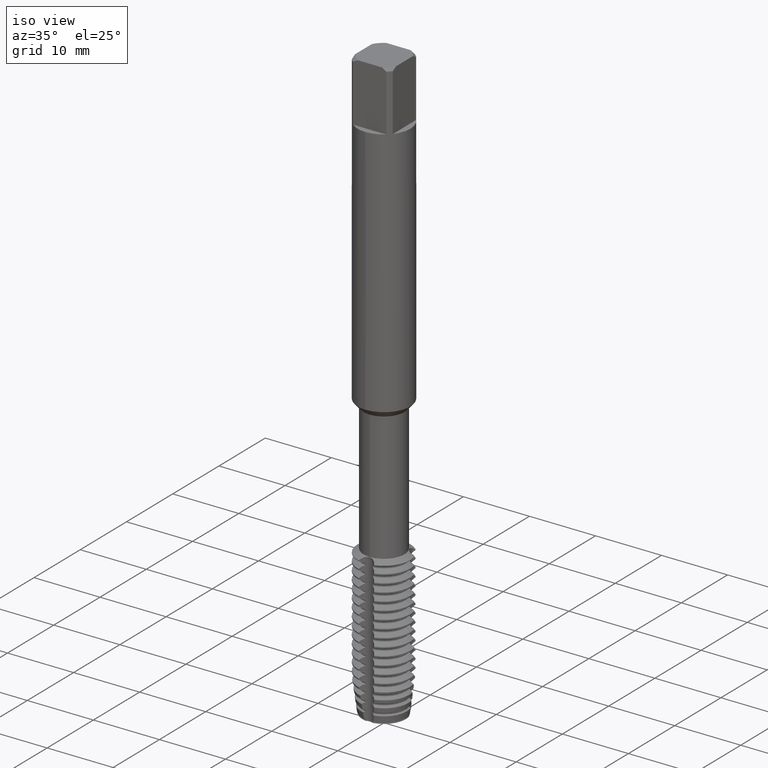
[diagram: clean part render]
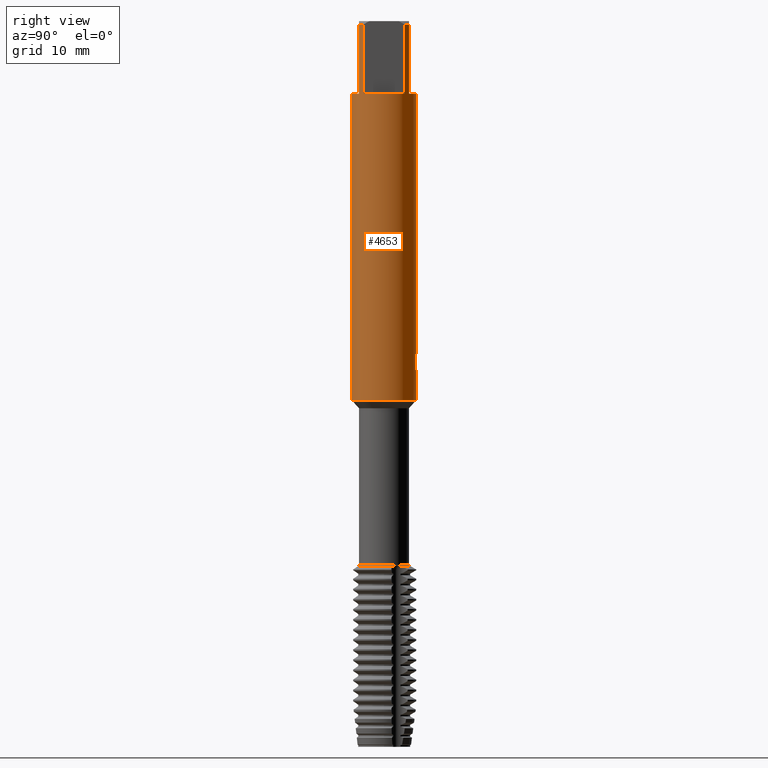
[diagram: tour spotlight — one face highlighted and labeled with its STEP entity id]
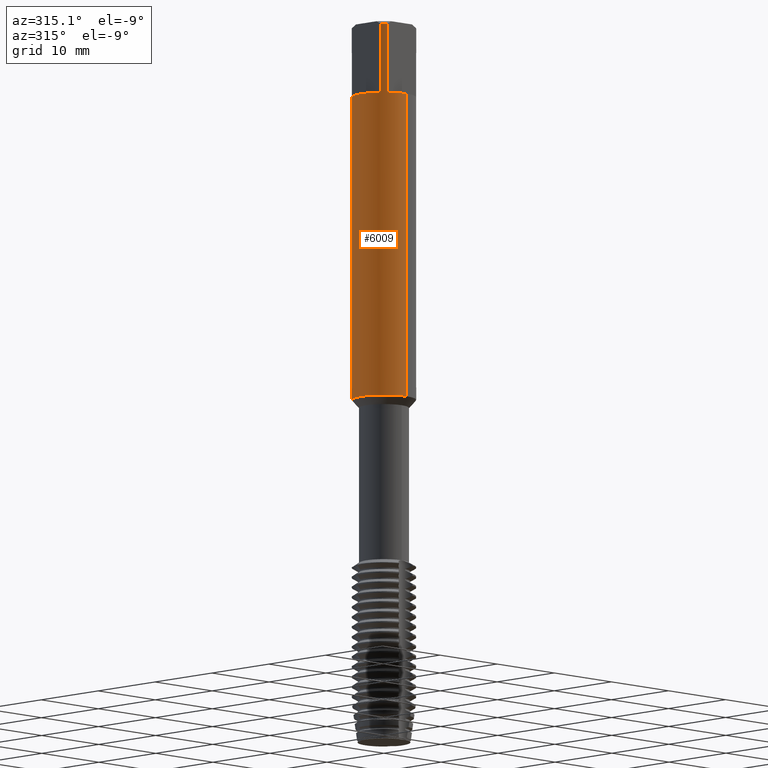
[diagram: tour spotlight — one face highlighted and labeled with its STEP entity id]
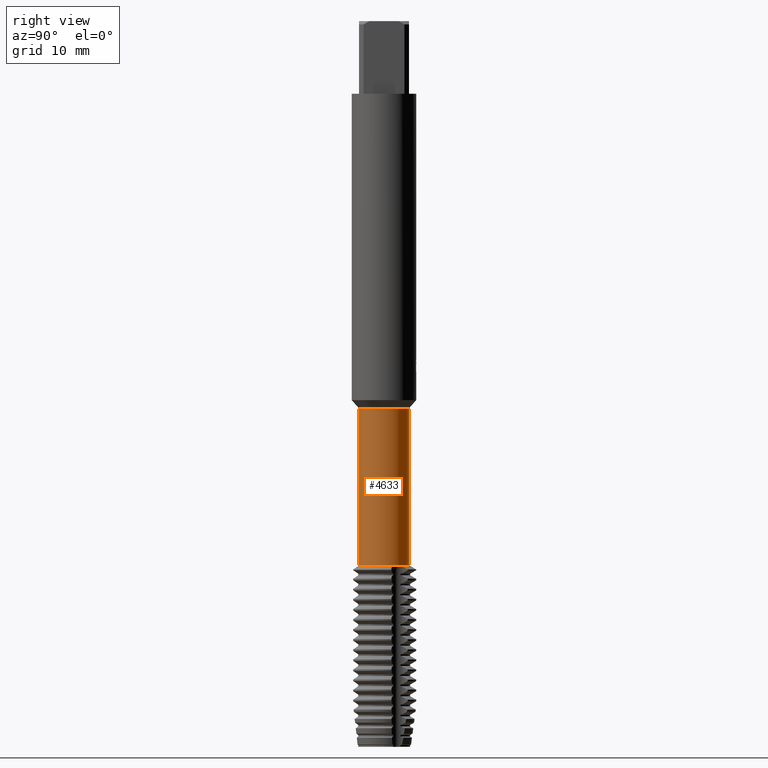
[diagram: tour spotlight — one face highlighted and labeled with its STEP entity id]
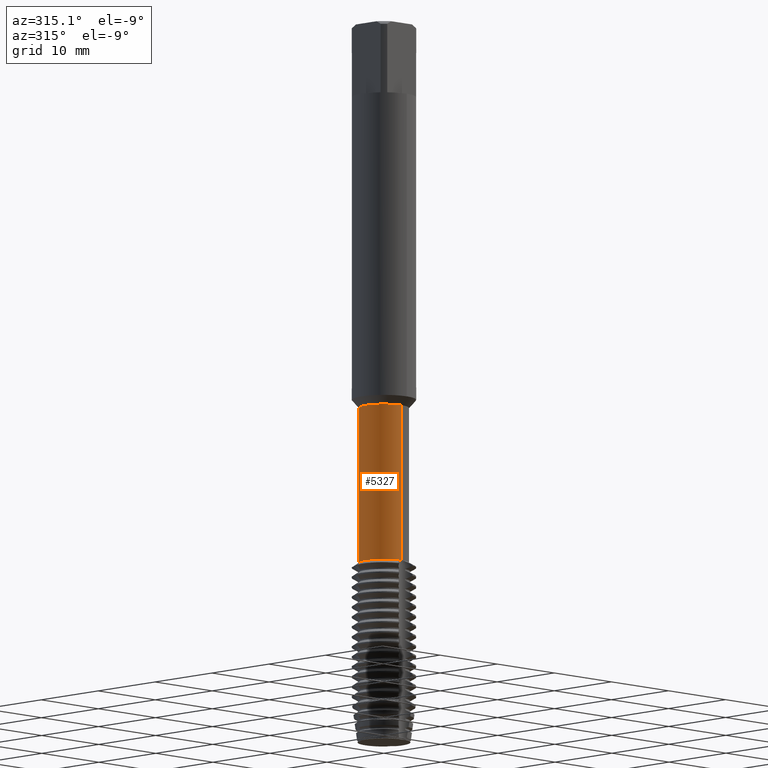
[diagram: tour spotlight — one face highlighted and labeled with its STEP entity id]
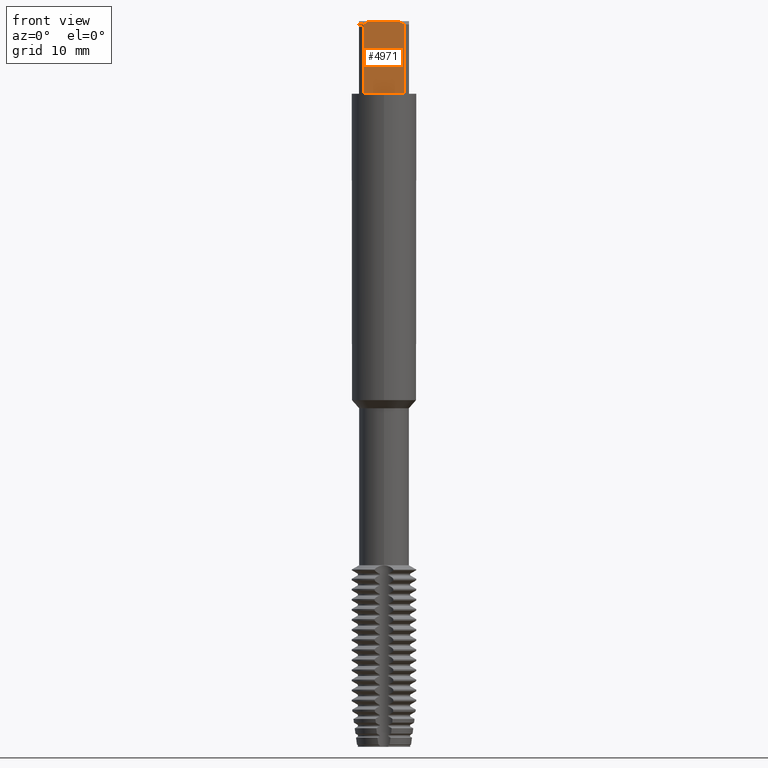
[diagram: tour spotlight — one face highlighted and labeled with its STEP entity id]
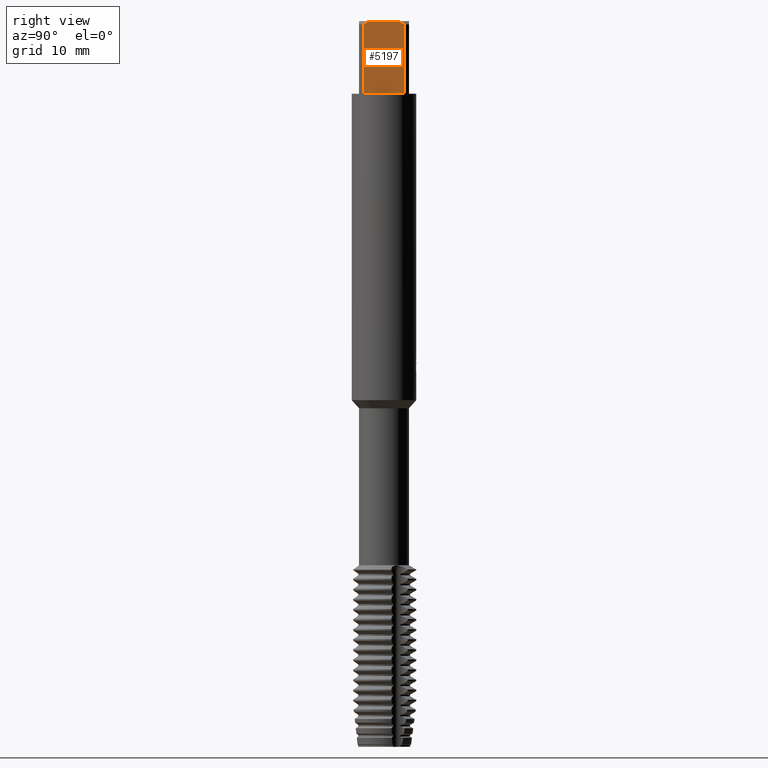
[diagram: tour spotlight — one face highlighted and labeled with its STEP entity id]
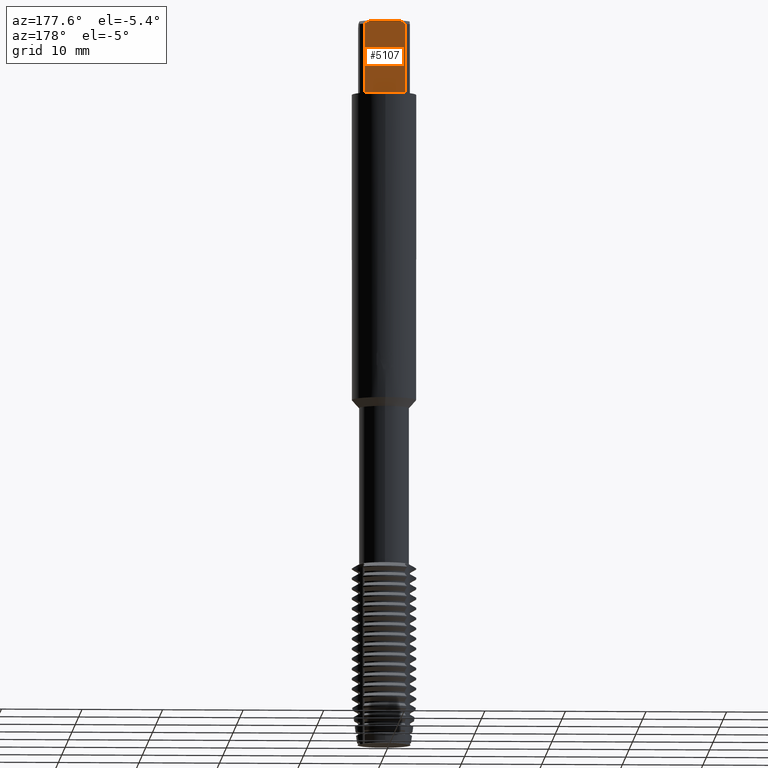
[diagram: tour spotlight — one face highlighted and labeled with its STEP entity id]
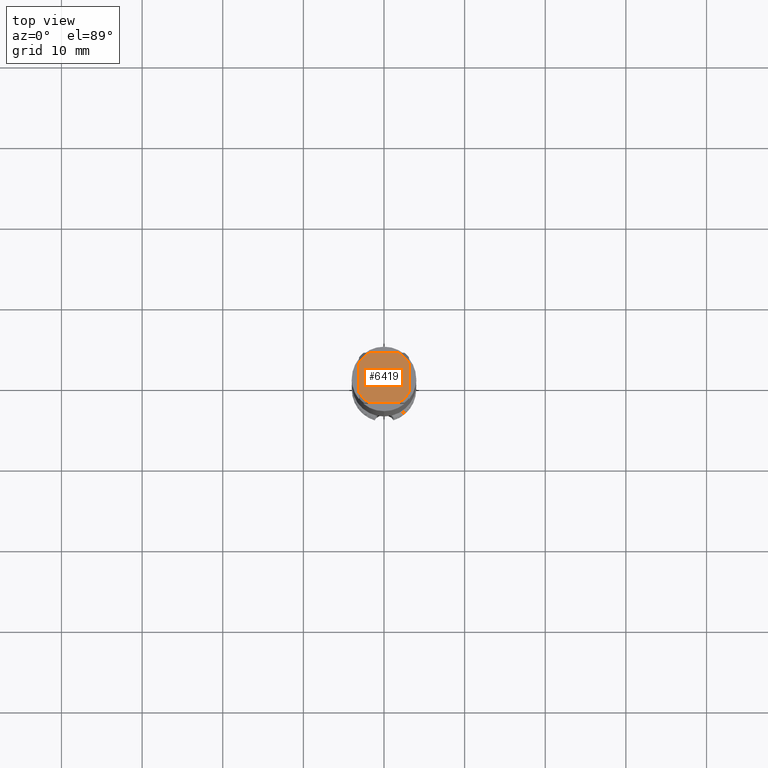
[diagram: tour spotlight — one face highlighted and labeled with its STEP entity id]
A machine part: a face-by-face anatomy tour. The part has 401 B-rep faces; the first image is the clean iso view, then the 8 largest visible faces are spotlighted one at a time (largest first), each with its STEP entity span.

Face 1 — right view, entity #4653. In plain terms, the highlighted cylindrical surface (edge-blend (fillet) strip) has radius 4 mm, axis along (-0, -0, 1).
Definition (entity closure, byte-faithful):
#2315=EDGE_CURVE('',#6605,#5627,#6788,.T.);
#2463=EDGE_CURVE('',#6605,#3423,#6956,.T.);
#2515=EDGE_CURVE('',#3627,#3425,#7014,.T.);
#2547=EDGE_CURVE('',#4567,#6255,#7048,.T.);
#2633=EDGE_CURVE('',#6645,#6367,#7143,.T.);
#2749=EDGE_CURVE('',#3021,#3627,#7269,.T.);
#2931=VERTEX_POINT('',#7471);
#3021=VERTEX_POINT('',#7572);
#3071=VERTEX_POINT('',#7627);
#3189=VERTEX_POINT('',#7757);
#3357=VERTEX_POINT('',#7937);
#3415=EDGE_CURVE('',#6653,#6111,#8003,.T.);
#3421=EDGE_CURVE('',#6367,#3685,#8009,.T.);
#3423=VERTEX_POINT('',#8011);
#3425=VERTEX_POINT('',#8013);
#3627=VERTEX_POINT('',#8229);
#3677=EDGE_CURVE('',#4889,#2931,#8282,.T.);
#3685=VERTEX_POINT('',#8290);
#3899=EDGE_CURVE('',#3425,#5627,#8523,.T.);
#4337=EDGE_CURVE('',#4567,#6475,#9004,.T.);
#4481=EDGE_CURVE('',#3357,#6653,#9157,.T.);
#4567=VERTEX_POINT('',#9256);
#4653=ADVANCED_FACE('',(#9346),#9347,.T.);
#4677=EDGE_CURVE('',#3071,#6645,#9372,.T.);
#4853=EDGE_CURVE('',#3189,#3021,#9558,.T.);
#4889=VERTEX_POINT('',#9595);
#5157=VERTEX_POINT('',#9895);
#5165=EDGE_CURVE('',#6475,#4889,#9904,.T.);
#5627=VERTEX_POINT('',#10408);
#5737=EDGE_CURVE('',#6111,#3071,#10525,.T.);
#5801=EDGE_CURVE('',#5157,#3189,#10591,.T.);
#6111=VERTEX_POINT('',#10933);
#6255=VERTEX_POINT('',#11088);
#6345=EDGE_CURVE('',#3423,#3357,#11186,.T.);
#6367=VERTEX_POINT('',#11210);
#6475=VERTEX_POINT('',#11326);
#6605=VERTEX_POINT('',#11465);
#6621=EDGE_CURVE('',#3685,#2931,#11483,.T.);
#6645=VERTEX_POINT('',#11510);
#6653=VERTEX_POINT('',#11520);
#6703=EDGE_CURVE('',#6255,#5157,#11573,.T.);
#6788=LINE('',#11704,#11705);
#6956=CIRCLE('',#12020,4.0);
#7014=B_SPLINE_CURVE_WITH_KNOTS('',3,(#12127,#12128,#12129,#12130,#12131,#12132),.UNSPECIFIED.,.F.,.F.,(4,2,4),(0.494770622055038,0.989541244110075,1.48380078362806),.UNSPECIFIED.);
#7048=B_SPLINE_CURVE_WITH_KNOTS('',3,(#12191,#12192,#12193,#12194,#12195,#12196,#12197,#12198,#12199,#12200),.UNSPECIFIED.,.F.,.F.,(4,2,2,2,4),(4.4526991756852,4.94758186169219,5.44257720584647,5.93757255000074,6.43183211739013),.UNSPECIFIED.);
#7143=CIRCLE('',#12346,4.0);
#7269=LINE('',#12612,#12613);
#7471=CARTESIAN_POINT('',(4.89842541528951E-016,-4.0,-9.0));
#7572=CARTESIAN_POINT('',(1.06976805211726,3.85429582604517,-42.9571325602606));
#7627=CARTESIAN_POINT('',(3.1,-2.52784493195291,-9.0));
#7757=CARTESIAN_POINT('',(0.698848625407164,3.93847820849202,-43.3319881433225));
#7937=CARTESIAN_POINT('',(2.52784493195291,3.1,-0.399999999999999));
#8003=LINE('',#13846,#13847);
#8009=LINE('',#13856,#13857);
#8011=CARTESIAN_POINT('',(2.52784493195291,3.1,-9.0));
#8013=CARTESIAN_POINT('',(0.639545381107491,3.94854171885065,-41.1250002214984));
#8229=CARTESIAN_POINT('',(1.06976805211726,3.85429582604517,-41.5370387491857));
#8282=LINE('',#14313,#14314);
#8290=CARTESIAN_POINT('',(2.52784493195291,-3.1,-9.0));
#8523=B_SPLINE_CURVE_WITH_KNOTS('',3,(#14786,#14787,#14788,#14789,#14790,#14791,#14792,#14793,#14794,#14795,#14796,#14797,#14798,#14799,#14800,#14801,#14802,#14803,#14804,#14805,#14806,#14807,#14808,#14809,#14810,#14811,#14812),.UNSPECIFIED.,.F.,.F.,(4,2,3,2,2,2,2,2,2,2,2,2,4),(-0.433988883841389,-0.216994441920694,0.0,0.216994441920695,0.433988883841389,0.651439051949554,0.86888922005772,1.08557476771835,1.30226031537897,1.51917146958756,1.73608262379616,1.95299377800475,2.16990493221334),.UNSPECIFIED.);
#9004=LINE('',#15654,#15655);
#9157=CIRCLE('',#15927,4.0);
#9256=CARTESIAN_POINT('',(3.69611869955071E-015,4.0,-43.5498202880827));
#9346=FACE_OUTER_BOUND('',#16255,.T.);
#9347=CYLINDRICAL_SURFACE('',#16256,4.0);
#9372=LINE('',#16294,#16295);
#9558=B_SPLINE_CURVE_WITH_KNOTS('',3,(#16609,#16610,#16611,#16612,#16613,#16614),.UNSPECIFIED.,.F.,.F.,(4,2,4),(6.43183150712965,6.9260910299634,7.42086163482515),.UNSPECIFIED.);
#9595=CARTESIAN_POINT('',(4.89842541528951E-016,-4.0,-47.0));
#9895=CARTESIAN_POINT('',(0.698848625407165,3.93847820849202,-42.1809145276873));
#9904=CIRCLE('',#17206,4.0);
#10408=CARTESIAN_POINT('',(-7.20270637807228E-015,4.0,-41.9436150494194));
#10525=CIRCLE('',#18351,4.0);
#10591=LINE('',#18459,#18460);
#10933=CARTESIAN_POINT('',(3.1,2.52784493195291,-9.0));
#11088=CARTESIAN_POINT('',(0.232082501628664,3.99326153819629,-43.5248663192182));
#11186=LINE('',#19418,#19419);
#11210=CARTESIAN_POINT('',(2.52784493195291,-3.1,-0.399999999999999));
#11326=CARTESIAN_POINT('',(0.0,4.0,-47.0));
#11465=CARTESIAN_POINT('',(-4.89842541528951E-016,4.0,-9.0));
#11483=CIRCLE('',#19962,4.0);
#11510=CARTESIAN_POINT('',(3.1,-2.52784493195291,-0.399999999999999));
#11520=CARTESIAN_POINT('',(3.1,2.52784493195291,-0.399999999999999));
#11573=ELLIPSE('',#20141,12.1919782934791,4.0);
#11704=CARTESIAN_POINT('',(-4.89842541528951E-016,4.0,-23.7));
#11705=VECTOR('',#20208,1.0);
#12020=AXIS2_PLACEMENT_3D('',#20439,#20440,#20441);
#12127=CARTESIAN_POINT('',(1.18035707567603,3.82187874924121,-41.7467769342516));
#12128=CARTESIAN_POINT('',(1.11367648565827,3.84247250836796,-41.5864359289181));
#12129=CARTESIAN_POINT('',(1.01357438534962,3.87125609297276,-41.4406843773074));
#12130=CARTESIAN_POINT('',(0.78345311909288,3.9242998309604,-41.2106467613999));
#12131=CARTESIAN_POINT('',(0.63771541469735,3.95213802368705,-41.1105816737677));
#12132=CARTESIAN_POINT('',(0.477389220642075,3.97141026991858,-41.0439430087632));
#12191=CARTESIAN_POINT('',(-1.22576151252176,3.80755941705712,-42.7473352858448));
#12192=CARTESIAN_POINT('',(-1.15912044510217,3.82901305393928,-42.907603575797));
#12193=CARTESIAN_POINT('',(-1.05911568783613,3.85904972555358,-43.05324046498));
#12194=CARTESIAN_POINT('',(-0.829208664349934,3.91489593554196,-43.2832342250477));
#12195=CARTESIAN_POINT('',(-0.683516225740893,3.94448570100761,-43.3833538392818));
#12196=CARTESIAN_POINT('',(-0.362802324519277,3.98679524795526,-43.5167787917411));
#12197=CARTESIAN_POINT('',(-0.187685528970072,3.99899970368524,-43.5500178668069));
#12198=CARTESIAN_POINT('',(0.142060803040709,4.0008701980404,-43.5500178668069));
#12199=CARTESIAN_POINT('',(0.317063255162871,3.99068249836186,-43.5168673038774));
#12200=CARTESIAN_POINT('',(0.477389457205558,3.97141024148211,-43.4502286352499));
#12346=AXIS2_PLACEMENT_3D('',#20797,#20798,#20799);
#12612=CARTESIAN_POINT('',(1.06976805211726,3.85429582604517,-42.2470856547231));
#12613=VECTOR('',#20922,1.0);
#13846=CARTESIAN_POINT('',(3.1,2.52784493195291,-4.7));
#13847=VECTOR('',#21768,1.0);
#13856=CARTESIAN_POINT('',(2.52784493195291,-3.1,-4.7));
#13857=VECTOR('',#21770,1.0);
#14313=CARTESIAN_POINT('',(4.89842541528951E-016,-4.0,-23.7));
#14314=VECTOR('',#22010,1.0);
#14786=CARTESIAN_POINT('',(0.532098216072937,3.96445096935906,-40.9758770765983));
#14787=CARTESIAN_POINT('',(0.582988157563676,3.95762065482306,-41.0268221818589));
#14788=CARTESIAN_POINT('',(0.627171332882767,3.95063798462478,-41.0913548828783));
#14789=CARTESIAN_POINT('',(0.685841546770316,3.94087626663683,-41.2329291338645));
#14790=CARTESIAN_POINT('',(0.700320784950853,3.93821670279402,-41.3099821294292));
#14791=CARTESIAN_POINT('',(0.700320784950853,3.93821670279402,-41.3823136100694));
#14792=CARTESIAN_POINT('',(0.700320784950853,3.93821670279402,-41.4546450907097));
#14793=CARTESIAN_POINT('',(0.68584154677032,3.94087626663683,-41.5316980862744));
#14794=CARTESIAN_POINT('',(0.627171332882775,3.95063798462478,-41.6732723372605));
#14795=CARTESIAN_POINT('',(0.582988157563676,3.95762065482306,-41.73780503828));
#14796=CARTESIAN_POINT('',(0.481101396826202,3.97129562874729,-41.8398022424108));
#14797=CARTESIAN_POINT('',(0.416512957692448,3.97889119630487,-41.8840842275783));
#14798=CARTESIAN_POINT('',(0.274803057984689,3.99118296686753,-41.9428936092845));
#14799=CARTESIAN_POINT('',(0.197668975861969,3.99577036598904,-41.9574132822197));
#14800=CARTESIAN_POINT('',(0.0530279983003748,4.00030061244195,-41.9574132822197));
#14801=CARTESIAN_POINT('',(-0.023988268325902,4.00055536926258,-41.9429848285208));
#14802=CARTESIAN_POINT('',(-0.165634023384678,3.99719702666007,-41.8843284940175));
#14803=CARTESIAN_POINT('',(-0.230267319963223,3.99369424389868,-41.8401035451182));
#14804=CARTESIAN_POINT('',(-0.332375559696668,3.98649579098173,-41.7380660211058));
#14805=CARTESIAN_POINT('',(-0.376658315570015,3.98233605816738,-41.6734164904531));
#14806=CARTESIAN_POINT('',(-0.435411530210726,3.97634112875091,-41.5316952694799));
#14807=CARTESIAN_POINT('',(-0.449878559349797,3.97462064628027,-41.454617328139));
#14808=CARTESIAN_POINT('',(-0.449878559349797,3.97462064628027,-41.3100098919999));
#14809=CARTESIAN_POINT('',(-0.435411530210726,3.97634112875091,-41.232931950659));
#14810=CARTESIAN_POINT('',(-0.376658315570015,3.98233605816738,-41.0912107296858));
#14811=CARTESIAN_POINT('',(-0.332375559696669,3.98649579098173,-41.026561199033));
#14812=CARTESIAN_POINT('',(-0.281294875643242,3.99009689016907,-40.9755158912373));
#15654=CARTESIAN_POINT('',(-4.89842541528951E-016,4.0,-23.7));
#15655=VECTOR('',#22779,1.0);
#15927=AXIS2_PLACEMENT_3D('',#22914,#22915,#22916);
#16255=EDGE_LOOP('',(#23105,#23106,#23107,#23108,#23109,#23110,#23111,#23112,#23113,#23114,#23115,#23116,#23117,#23118,#23119,#23120,#23121,#23122,#23123,#23124));
#16256=AXIS2_PLACEMENT_3D('',#23125,#23126,#23127);
#16294=CARTESIAN_POINT('',(3.1,-2.52784493195291,-4.7));
#16295=VECTOR('',#23143,1.0);
#16609=CARTESIAN_POINT('',(0.477389238488601,3.97141026777331,-43.4502282877905));
#16610=CARTESIAN_POINT('',(0.637715427074438,3.95213802146837,-43.3835896250306));
#16611=CARTESIAN_POINT('',(0.783453126486106,3.92429982936398,-43.2835245407805));
#16612=CARTESIAN_POINT('',(1.01357438477338,3.87125609299773,-43.0534869327106));
#16613=CARTESIAN_POINT('',(1.1136764815894,3.8424725095023,-42.9077353861316));
#16614=CARTESIAN_POINT('',(1.18035706927677,3.82187875121757,-42.7473943863408));
#17206=AXIS2_PLACEMENT_3D('',#23834,#23835,#23836);
#18351=AXIS2_PLACEMENT_3D('',#24471,#24472,#24473);
#18459=CARTESIAN_POINT('',(0.698848625407165,3.93847820849202,-42.7564513355049));
#18460=VECTOR('',#24506,1.0);
#19418=CARTESIAN_POINT('',(2.52784493195291,3.1,-4.7));
#19419=VECTOR('',#25184,1.0);
#19962=AXIS2_PLACEMENT_3D('',#25623,#25624,#25625);
#20141=AXIS2_PLACEMENT_3D('',#25716,#25717,#25718);
#20208=DIRECTION('',(0.0,0.0,-1.0));
#20439=CARTESIAN_POINT('',(0.0,0.0,-9.0));
#20440=DIRECTION('',(0.0,0.0,-1.0));
#20441=DIRECTION('',(0.0,1.0,0.0));
#20797=CARTESIAN_POINT('',(0.0,0.0,-0.399999999999999));
#20798=DIRECTION('',(0.0,0.0,-1.0));
#20799=DIRECTION('',(0.0,1.0,0.0));
#20922=DIRECTION('',(-0.0,-0.0,1.0));
#21768=DIRECTION('',(0.0,0.0,-1.0));
#21770=DIRECTION('',(0.0,0.0,-1.0));
#22010=DIRECTION('',(-0.0,-0.0,1.0));
#22779=DIRECTION('',(0.0,0.0,-1.0));
#22914=CARTESIAN_POINT('',(0.0,0.0,-0.399999999999999));
#22915=DIRECTION('',(0.0,0.0,-1.0));
#22916=DIRECTION('',(0.0,1.0,0.0));
#23105=ORIENTED_EDGE('',*,*,#2315,.F.);
#23106=ORIENTED_EDGE('',*,*,#2463,.T.);
#23107=ORIENTED_EDGE('',*,*,#6345,.T.);
#23108=ORIENTED_EDGE('',*,*,#4481,.T.);
#23109=ORIENTED_EDGE('',*,*,#3415,.T.);
#23110=ORIENTED_EDGE('',*,*,#5737,.T.);
#23111=ORIENTED_EDGE('',*,*,#4677,.T.);
#23112=ORIENTED_EDGE('',*,*,#2633,.T.);
#23113=ORIENTED_EDGE('',*,*,#3421,.T.);
#23114=ORIENTED_EDGE('',*,*,#6621,.T.);
#23115=ORIENTED_EDGE('',*,*,#3677,.F.);
#23116=ORIENTED_EDGE('',*,*,#5165,.F.);
#23117=ORIENTED_EDGE('',*,*,#4337,.F.);
#23118=ORIENTED_EDGE('',*,*,#2547,.T.);
#23119=ORIENTED_EDGE('',*,*,#6703,.T.);
#23120=ORIENTED_EDGE('',*,*,#5801,.T.);
#23121=ORIENTED_EDGE('',*,*,#4853,.T.);
#23122=ORIENTED_EDGE('',*,*,#2749,.T.);
#23123=ORIENTED_EDGE('',*,*,#2515,.T.);
#23124=ORIENTED_EDGE('',*,*,#3899,.T.);
#23125=CARTESIAN_POINT('',(0.0,0.0,-23.7));
#23126=DIRECTION('',(-0.0,-0.0,1.0));
#23127=DIRECTION('',(0.0,1.0,0.0));
#23143=DIRECTION('',(-0.0,-0.0,1.0));
#23834=CARTESIAN_POINT('',(0.0,0.0,-47.0));
#23835=DIRECTION('',(0.0,0.0,-1.0));
#23836=DIRECTION('',(0.0,1.0,0.0));
#24471=CARTESIAN_POINT('',(0.0,0.0,-9.0));
#24472=DIRECTION('',(0.0,0.0,-1.0));
#24473=DIRECTION('',(0.0,1.0,0.0));
#24506=DIRECTION('',(0.0,0.0,-1.0));
#25184=DIRECTION('',(-0.0,-0.0,1.0));
#25623=CARTESIAN_POINT('',(0.0,0.0,-9.0));
#25624=DIRECTION('',(0.0,0.0,-1.0));
#25625=DIRECTION('',(0.0,1.0,0.0));
#25716=CARTESIAN_POINT('',(0.0,0.0,-44.1930975338615));
#25717=DIRECTION('',(0.944648353914092,0.0,-0.328084573619969));
#25718=DIRECTION('',(0.328084573619968,-0.0,0.944648353914092));

Face 2 — auxiliary view, entity #6009. In plain terms, the highlighted cylindrical surface (edge-blend (fillet) strip) has radius 4 mm, axis along (-0, -0, 1).
Definition (entity closure, byte-faithful):
#2283=EDGE_CURVE('',#5339,#3273,#6755,.T.);
#2315=EDGE_CURVE('',#6605,#5627,#6788,.T.);
#2449=EDGE_CURVE('',#4889,#6475,#6939,.T.);
#2539=VERTEX_POINT('',#7040);
#2603=EDGE_CURVE('',#4829,#5991,#7111,.T.);
#2783=VERTEX_POINT('',#7307);
#2861=EDGE_CURVE('',#6173,#5591,#7393,.T.);
#2873=VERTEX_POINT('',#7407);
#2931=VERTEX_POINT('',#7471);
#3163=EDGE_CURVE('',#2783,#5339,#7730,.T.);
#3273=VERTEX_POINT('',#7845);
#3613=EDGE_CURVE('',#5991,#6147,#8214,.T.);
#3677=EDGE_CURVE('',#4889,#2931,#8282,.T.);
#3989=VERTEX_POINT('',#8623);
#4221=EDGE_CURVE('',#5131,#6605,#8880,.T.);
#4329=EDGE_CURVE('',#2931,#2539,#8996,.T.);
#4337=EDGE_CURVE('',#4567,#6475,#9004,.T.);
#4347=EDGE_CURVE('',#5627,#2783,#9015,.T.);
#4425=EDGE_CURVE('',#5575,#6173,#9096,.T.);
#4495=EDGE_CURVE('',#4727,#5131,#9173,.T.);
#4567=VERTEX_POINT('',#9256);
#4621=EDGE_CURVE('',#3273,#5575,#9313,.T.);
#4727=VERTEX_POINT('',#9423);
#4829=VERTEX_POINT('',#9531);
#4889=VERTEX_POINT('',#9595);
#5117=EDGE_CURVE('',#5591,#4567,#9852,.T.);
#5131=VERTEX_POINT('',#9866);
#5339=VERTEX_POINT('',#10095);
#5449=EDGE_CURVE('',#2539,#3989,#10219,.T.);
#5575=VERTEX_POINT('',#10352);
#5591=VERTEX_POINT('',#10370);
#5627=VERTEX_POINT('',#10408);
#5807=EDGE_CURVE('',#6147,#4727,#10597,.T.);
#5863=EDGE_CURVE('',#2873,#4829,#10663,.T.);
#5991=VERTEX_POINT('',#10800);
#6009=ADVANCED_FACE('',(#10819),#10820,.T.);
#6147=VERTEX_POINT('',#10970);
#6173=VERTEX_POINT('',#10997);
#6421=EDGE_CURVE('',#3989,#2873,#11271,.T.);
#6475=VERTEX_POINT('',#11326);
#6605=VERTEX_POINT('',#11465);
#6755=CIRCLE('',#11630,4.0);
#6788=LINE('',#11704,#11705);
#6939=CIRCLE('',#11999,4.0);
#7040=CARTESIAN_POINT('',(-2.52784493195291,-3.1,-9.0));
#7111=CIRCLE('',#12305,4.0);
#7307=CARTESIAN_POINT('',(-0.389103155506437,3.98102985851336,-41.6396269986405));
#7393=ELLIPSE('',#12800,4.45971372817144,4.0);
#7407=CARTESIAN_POINT('',(-3.1,-2.52784493195291,-0.399999999999999));
#7471=CARTESIAN_POINT('',(4.89842541528951E-016,-4.0,-9.0));
#7730=B_SPLINE_CURVE_WITH_KNOTS('',3,(#13343,#13344,#13345,#13346,#13347,#13348,#13349,#13350,#13351,#13352,#13353,#13354,#13355,#13356,#13357,#13358,#13359,#13360,#13361,#13362,#13363,#13364,#13365,#13366,#13367,#13368,#13369),.UNSPECIFIED.,.F.,.F.,(4,2,3,2,2,2,2,2,2,2,2,2,4),(-0.433988883841389,-0.216994441920694,0.0,0.216994441920695,0.433988883841389,0.651439051949554,0.86888922005772,1.08557476771835,1.30226031537897,1.51917146958756,1.73608262379616,1.95299377800475,2.16990493221334),.UNSPECIFIED.);
#7845=CARTESIAN_POINT('',(-0.828058723127036,3.91335134520953,-41.3786977589577));
#8214=LINE('',#14202,#14203);
#8282=LINE('',#14313,#14314);
#8623=CARTESIAN_POINT('',(-2.52784493195291,-3.1,-0.399999999999999));
#8880=CIRCLE('',#15429,4.0);
#8996=CIRCLE('',#15623,4.0);
#9004=LINE('',#15654,#15655);
#9015=B_SPLINE_CURVE_WITH_KNOTS('',3,(#15667,#15668,#15669,#15670,#15671,#15672,#15673,#15674,#15675,#15676,#15677,#15678,#15679,#15680,#15681,#15682,#15683,#15684,#15685,#15686,#15687,#15688,#15689,#15690,#15691,#15692,#15693),.UNSPECIFIED.,.F.,.F.,(4,2,3,2,2,2,2,2,2,2,2,2,4),(-0.433988883841389,-0.216994441920694,0.0,0.216994441920695,0.433988883841389,0.651439051949554,0.86888922005772,1.08557476771835,1.30226031537897,1.51917146958756,1.73608262379616,1.95299377800475,2.16990493221334),.UNSPECIFIED.);
#9096=LINE('',#15833,#15834);
#9173=LINE('',#15951,#15952);
#9256=CARTESIAN_POINT('',(3.69611869955071E-015,4.0,-43.5498202880827));
#9313=B_SPLINE_CURVE_WITH_KNOTS('',3,(#16181,#16182,#16183,#16184,#16185,#16186,#16187,#16188,#16189,#16190,#16191,#16192,#16193,#16194),.UNSPECIFIED.,.F.,.F.,(4,2,2,2,2,2,4),(2.50666448025176,2.86453870699597,3.22241293374018,3.58028716048439,3.9374295438099,4.29457192713541,4.65370017414775),.UNSPECIFIED.);
#9423=CARTESIAN_POINT('',(-2.52784493195291,3.1,-0.399999999999999));
#9531=CARTESIAN_POINT('',(-3.1,-2.52784493195291,-9.0));
#9595=CARTESIAN_POINT('',(4.89842541528951E-016,-4.0,-47.0));
#9852=B_SPLINE_CURVE_WITH_KNOTS('',3,(#17130,#17131,#17132,#17133,#17134,#17135,#17136,#17137,#17138,#17139),.UNSPECIFIED.,.F.,.F.,(4,2,2,2,4),(4.4526991756852,4.94758186169219,5.44257720584647,5.93757255000074,6.43183211739013),.UNSPECIFIED.);
#9866=CARTESIAN_POINT('',(-2.52784493195291,3.1,-9.0));
#10095=CARTESIAN_POINT('',(-0.44986719218241,3.97462193288845,-41.3786977589577));
#10219=LINE('',#17756,#17757);
#10352=CARTESIAN_POINT('',(2.65184064516332E-016,4.0,-42.3250641241505));
#10370=CARTESIAN_POINT('',(-1.0696422019544,3.85433075381423,-43.0226643127036));
#10408=CARTESIAN_POINT('',(-7.20270637807228E-015,4.0,-41.9436150494194));
#10597=CIRCLE('',#18468,4.0);
#10663=LINE('',#18603,#18604);
#10800=CARTESIAN_POINT('',(-3.1,2.52784493195291,-9.0));
#10819=FACE_OUTER_BOUND('',#18846,.T.);
#10820=CYLINDRICAL_SURFACE('',#18847,4.0);
#10970=CARTESIAN_POINT('',(-3.1,2.52784493195291,-0.399999999999999));
#10997=CARTESIAN_POINT('',(-3.30793584086781E-015,4.0,-42.4953129069263));
#11271=CIRCLE('',#19587,4.0);
#11326=CARTESIAN_POINT('',(0.0,4.0,-47.0));
#11465=CARTESIAN_POINT('',(-4.89842541528951E-016,4.0,-9.0));
#11630=AXIS2_PLACEMENT_3D('',#20188,#20189,#20190);
#11704=CARTESIAN_POINT('',(-4.89842541528951E-016,4.0,-23.7));
#11705=VECTOR('',#20208,1.0);
#11999=AXIS2_PLACEMENT_3D('',#20407,#20408,#20409);
#12305=AXIS2_PLACEMENT_3D('',#20764,#20765,#20766);
#12800=AXIS2_PLACEMENT_3D('',#21065,#21066,#21067);
#13343=CARTESIAN_POINT('',(0.532098216072937,3.96445096935906,-40.9758770765983));
#13344=CARTESIAN_POINT('',(0.582988157563676,3.95762065482306,-41.0268221818589));
#13345=CARTESIAN_POINT('',(0.627171332882767,3.95063798462478,-41.0913548828783));
#13346=CARTESIAN_POINT('',(0.685841546770316,3.94087626663683,-41.2329291338645));
#13347=CARTESIAN_POINT('',(0.700320784950853,3.93821670279402,-41.3099821294292));
#13348=CARTESIAN_POINT('',(0.700320784950853,3.93821670279402,-41.3823136100694));
#13349=CARTESIAN_POINT('',(0.700320784950853,3.93821670279402,-41.4546450907097));
#13350=CARTESIAN_POINT('',(0.68584154677032,3.94087626663683,-41.5316980862744));
#13351=CARTESIAN_POINT('',(0.627171332882775,3.95063798462478,-41.6732723372605));
#13352=CARTESIAN_POINT('',(0.582988157563676,3.95762065482306,-41.73780503828));
#13353=CARTESIAN_POINT('',(0.481101396826202,3.97129562874729,-41.8398022424108));
#13354=CARTESIAN_POINT('',(0.416512957692448,3.97889119630487,-41.8840842275783));
#13355=CARTESIAN_POINT('',(0.274803057984689,3.99118296686753,-41.9428936092845));
#13356=CARTESIAN_POINT('',(0.197668975861969,3.99577036598904,-41.9574132822197));
#13357=CARTESIAN_POINT('',(0.0530279983003748,4.00030061244195,-41.9574132822197));
#13358=CARTESIAN_POINT('',(-0.023988268325902,4.00055536926258,-41.9429848285208));
#13359=CARTESIAN_POINT('',(-0.165634023384678,3.99719702666007,-41.8843284940175));
#13360=CARTESIAN_POINT('',(-0.230267319963223,3.99369424389868,-41.8401035451182));
#13361=CARTESIAN_POINT('',(-0.332375559696668,3.98649579098173,-41.7380660211058));
#13362=CARTESIAN_POINT('',(-0.376658315570015,3.98233605816738,-41.6734164904531));
#13363=CARTESIAN_POINT('',(-0.435411530210726,3.97634112875091,-41.5316952694799));
#13364=CARTESIAN_POINT('',(-0.449878559349797,3.97462064628027,-41.454617328139));
#13365=CARTESIAN_POINT('',(-0.449878559349797,3.97462064628027,-41.3100098919999));
#13366=CARTESIAN_POINT('',(-0.435411530210726,3.97634112875091,-41.232931950659));
#13367=CARTESIAN_POINT('',(-0.376658315570015,3.98233605816738,-41.0912107296858));
#13368=CARTESIAN_POINT('',(-0.332375559696669,3.98649579098173,-41.026561199033));
#13369=CARTESIAN_POINT('',(-0.281294875643242,3.99009689016907,-40.9755158912373));
#14202=CARTESIAN_POINT('',(-3.1,2.52784493195291,-4.7));
#14203=VECTOR('',#21952,1.0);
#14313=CARTESIAN_POINT('',(4.89842541528951E-016,-4.0,-23.7));
#14314=VECTOR('',#22010,1.0);
#15429=AXIS2_PLACEMENT_3D('',#22659,#22660,#22661);
#15623=AXIS2_PLACEMENT_3D('',#22776,#22777,#22778);
#15654=CARTESIAN_POINT('',(-4.89842541528951E-016,4.0,-23.7));
#15655=VECTOR('',#22779,1.0);
#15667=CARTESIAN_POINT('',(0.532098216072937,3.96445096935906,-40.9758770765983));
#15668=CARTESIAN_POINT('',(0.582988157563676,3.95762065482306,-41.0268221818589));
#15669=CARTESIAN_POINT('',(0.627171332882767,3.95063798462478,-41.0913548828783));
#15670=CARTESIAN_POINT('',(0.685841546770316,3.94087626663683,-41.2329291338645));
#15671=CARTESIAN_POINT('',(0.700320784950853,3.93821670279402,-41.3099821294292));
#15672=CARTESIAN_POINT('',(0.700320784950853,3.93821670279402,-41.3823136100694));
#15673=CARTESIAN_POINT('',(0.700320784950853,3.93821670279402,-41.4546450907097));
#15674=CARTESIAN_POINT('',(0.68584154677032,3.94087626663683,-41.5316980862744));
#15675=CARTESIAN_POINT('',(0.627171332882775,3.95063798462478,-41.6732723372605));
#15676=CARTESIAN_POINT('',(0.582988157563676,3.95762065482306,-41.73780503828));
#15677=CARTESIAN_POINT('',(0.481101396826202,3.97129562874729,-41.8398022424108));
#15678=CARTESIAN_POINT('',(0.416512957692448,3.97889119630487,-41.8840842275783));
#15679=CARTESIAN_POINT('',(0.274803057984689,3.99118296686753,-41.9428936092845));
#15680=CARTESIAN_POINT('',(0.197668975861969,3.99577036598904,-41.9574132822197));
#15681=CARTESIAN_POINT('',(0.0530279983003748,4.00030061244195,-41.9574132822197));
#15682=CARTESIAN_POINT('',(-0.023988268325902,4.00055536926258,-41.9429848285208));
#15683=CARTESIAN_POINT('',(-0.165634023384678,3.99719702666007,-41.8843284940175));
#15684=CARTESIAN_POINT('',(-0.230267319963223,3.99369424389868,-41.8401035451182));
#15685=CARTESIAN_POINT('',(-0.332375559696668,3.98649579098173,-41.7380660211058));
#15686=CARTESIAN_POINT('',(-0.376658315570015,3.98233605816738,-41.6734164904531));
#15687=CARTESIAN_POINT('',(-0.435411530210726,3.97634112875091,-41.5316952694799));
#15688=CARTESIAN_POINT('',(-0.449878559349797,3.97462064628027,-41.454617328139));
#15689=CARTESIAN_POINT('',(-0.449878559349797,3.97462064628027,-41.3100098919999));
#15690=CARTESIAN_POINT('',(-0.435411530210726,3.97634112875091,-41.232931950659));
#15691=CARTESIAN_POINT('',(-0.376658315570015,3.98233605816738,-41.0912107296858));
#15692=CARTESIAN_POINT('',(-0.332375559696669,3.98649579098173,-41.026561199033));
#15693=CARTESIAN_POINT('',(-0.281294875643242,3.99009689016907,-40.9755158912373));
#15833=CARTESIAN_POINT('',(-4.89842541528951E-016,4.0,-23.7));
#15834=VECTOR('',#22848,1.0);
#15951=CARTESIAN_POINT('',(-2.52784493195291,3.1,-4.7));
#15952=VECTOR('',#22937,1.0);
#16181=CARTESIAN_POINT('',(-0.755754126407645,3.92795566426326,-41.0231534609388));
#16182=CARTESIAN_POINT('',(-0.804163055691749,3.91864159904926,-41.1397603509158));
#16183=CARTESIAN_POINT('',(-0.828087214321491,3.91334531641117,-41.2667500796715));
#16184=CARTESIAN_POINT('',(-0.828087214321491,3.91334531641117,-41.505332897501));
#16185=CARTESIAN_POINT('',(-0.804163055691749,3.91864159904926,-41.6323226262567));
#16186=CARTESIAN_POINT('',(-0.707345197123555,3.93726972947727,-41.8655364062106));
#16187=CARTESIAN_POINT('',(-0.634469720841769,3.95027088142308,-41.9717943186632));
#16188=CARTESIAN_POINT('',(-0.466645556851756,3.97358835352712,-42.1394152076946));
#16189=CARTESIAN_POINT('',(-0.360448419359038,3.98543590447698,-42.2121242865005));
#16190=CARTESIAN_POINT('',(-0.127452772450333,3.99967226179297,-42.3086731970945));
#16191=CARTESIAN_POINT('',(-0.000629125990666085,4.00177109567712,-42.3324949040693));
#16192=CARTESIAN_POINT('',(0.238023192989055,3.99470590955073,-42.3324949040693));
#16193=CARTESIAN_POINT('',(0.365153882271796,3.98502870678884,-42.3084354951238));
#16194=CARTESIAN_POINT('',(0.481734847263037,3.97088548524538,-42.2599621341313));
#17130=CARTESIAN_POINT('',(-1.22576151252176,3.80755941705712,-42.7473352858448));
#17131=CARTESIAN_POINT('',(-1.15912044510217,3.82901305393928,-42.907603575797));
#17132=CARTESIAN_POINT('',(-1.05911568783613,3.85904972555358,-43.05324046498));
#17133=CARTESIAN_POINT('',(-0.829208664349934,3.91489593554196,-43.2832342250477));
#17134=CARTESIAN_POINT('',(-0.683516225740893,3.94448570100761,-43.3833538392818));
#17135=CARTESIAN_POINT('',(-0.362802324519277,3.98679524795526,-43.5167787917411));
#17136=CARTESIAN_POINT('',(-0.187685528970072,3.99899970368524,-43.5500178668069));
#17137=CARTESIAN_POINT('',(0.142060803040709,4.0008701980404,-43.5500178668069));
#17138=CARTESIAN_POINT('',(0.317063255162871,3.99068249836186,-43.5168673038774));
#17139=CARTESIAN_POINT('',(0.477389457205558,3.97141024148211,-43.4502286352499));
#17756=CARTESIAN_POINT('',(-2.52784493195291,-3.1,-4.7));
#17757=VECTOR('',#24193,1.0);
#18468=AXIS2_PLACEMENT_3D('',#24510,#24511,#24512);
#18603=CARTESIAN_POINT('',(-3.1,-2.52784493195291,-4.7));
#18604=VECTOR('',#24616,1.0);
#18846=EDGE_LOOP('',(#24771,#24772,#24773,#24774,#24775,#24776,#24777,#24778,#24779,#24780,#24781,#24782,#24783,#24784,#24785,#24786,#24787,#24788,#24789,#24790));
#18847=AXIS2_PLACEMENT_3D('',#24791,#24792,#24793);
#19587=AXIS2_PLACEMENT_3D('',#25427,#25428,#25429);
#20188=CARTESIAN_POINT('',(0.0,0.0,-41.3786977589577));
#20189=DIRECTION('',(0.0,-0.0,1.0));
#20190=DIRECTION('',(0.0,1.0,0.0));
#20208=DIRECTION('',(0.0,0.0,-1.0));
#20407=CARTESIAN_POINT('',(0.0,0.0,-47.0));
#20408=DIRECTION('',(0.0,0.0,-1.0));
#20409=DIRECTION('',(0.0,1.0,0.0));
#20764=CARTESIAN_POINT('',(0.0,0.0,-9.0));
#20765=DIRECTION('',(0.0,0.0,-1.0));
#20766=DIRECTION('',(0.0,1.0,0.0));
#21065=CARTESIAN_POINT('',(0.0,0.0,-42.4953129069263));
#21066=DIRECTION('',(-0.442195774284071,0.0,0.896918556617774));
#21067=DIRECTION('',(0.896918556617774,-0.0,0.442195774284071));
#21952=DIRECTION('',(-0.0,-0.0,1.0));
#22010=DIRECTION('',(-0.0,-0.0,1.0));
#22659=CARTESIAN_POINT('',(0.0,0.0,-9.0));
#22660=DIRECTION('',(0.0,0.0,-1.0));
#22661=DIRECTION('',(0.0,1.0,0.0));
#22776=CARTESIAN_POINT('',(0.0,0.0,-9.0));
#22777=DIRECTION('',(0.0,0.0,-1.0));
#22778=DIRECTION('',(0.0,1.0,0.0));
#22779=DIRECTION('',(0.0,0.0,-1.0));
#22848=DIRECTION('',(0.0,0.0,-1.0));
#22937=DIRECTION('',(0.0,0.0,-1.0));
#24193=DIRECTION('',(-0.0,-0.0,1.0));
#24510=CARTESIAN_POINT('',(0.0,0.0,-0.399999999999999));
#24511=DIRECTION('',(0.0,0.0,-1.0));
#24512=DIRECTION('',(0.0,1.0,0.0));
#24616=DIRECTION('',(0.0,0.0,-1.0));
#24771=ORIENTED_EDGE('',*,*,#2315,.T.);
#24772=ORIENTED_EDGE('',*,*,#4347,.T.);
#24773=ORIENTED_EDGE('',*,*,#3163,.T.);
#24774=ORIENTED_EDGE('',*,*,#2283,.T.);
#24775=ORIENTED_EDGE('',*,*,#4621,.T.);
#24776=ORIENTED_EDGE('',*,*,#4425,.T.);
#24777=ORIENTED_EDGE('',*,*,#2861,.T.);
#24778=ORIENTED_EDGE('',*,*,#5117,.T.);
#24779=ORIENTED_EDGE('',*,*,#4337,.T.);
#24780=ORIENTED_EDGE('',*,*,#2449,.F.);
#24781=ORIENTED_EDGE('',*,*,#3677,.T.);
#24782=ORIENTED_EDGE('',*,*,#4329,.T.);
#24783=ORIENTED_EDGE('',*,*,#5449,.T.);
#24784=ORIENTED_EDGE('',*,*,#6421,.T.);
#24785=ORIENTED_EDGE('',*,*,#5863,.T.);
#24786=ORIENTED_EDGE('',*,*,#2603,.T.);
#24787=ORIENTED_EDGE('',*,*,#3613,.T.);
#24788=ORIENTED_EDGE('',*,*,#5807,.T.);
#24789=ORIENTED_EDGE('',*,*,#4495,.T.);
#24790=ORIENTED_EDGE('',*,*,#4221,.T.);
#24791=CARTESIAN_POINT('',(0.0,0.0,-23.7));
#24792=DIRECTION('',(-0.0,-0.0,1.0));
#24793=DIRECTION('',(0.0,1.0,0.0));
#25427=CARTESIAN_POINT('',(0.0,0.0,-0.399999999999999));
#25428=DIRECTION('',(0.0,0.0,-1.0));
#25429=DIRECTION('',(0.0,1.0,0.0));

Face 3 — right view, entity #4633. In plain terms, the highlighted cylindrical surface (edge-blend (fillet) strip) has radius 3.1 mm, axis along (-0, -0, 1).
Definition (entity closure, byte-faithful):
#3159=VERTEX_POINT('',#7726);
#3317=VERTEX_POINT('',#7895);
#3637=EDGE_CURVE('',#3317,#5783,#8240,.T.);
#4359=EDGE_CURVE('',#3159,#3317,#9027,.T.);
#4441=EDGE_CURVE('',#3159,#5071,#9114,.T.);
#4633=ADVANCED_FACE('',(#9325),#9326,.T.);
#5071=VERTEX_POINT('',#9803);
#5385=EDGE_CURVE('',#5783,#5071,#10147,.T.);
#5783=VERTEX_POINT('',#10572);
#7726=CARTESIAN_POINT('',(0.0,3.1,-48.00892411));
#7895=CARTESIAN_POINT('',(0.0,3.1,-67.4803847577293));
#8240=CIRCLE('',#14241,3.1);
#9027=LINE('',#15708,#15709);
#9114=CIRCLE('',#15858,3.1);
#9325=FACE_OUTER_BOUND('',#16217,.T.);
#9326=CYLINDRICAL_SURFACE('',#16218,3.1);
#9803=CARTESIAN_POINT('',(3.79627969684937E-016,-3.1,-48.00892411));
#10147=LINE('',#17636,#17637);
#10572=CARTESIAN_POINT('',(3.79627969684937E-016,-3.1,-67.4803847577293));
#14241=AXIS2_PLACEMENT_3D('',#21974,#21975,#21976);
#15708=CARTESIAN_POINT('',(-3.79627969684937E-016,3.1,-57.7446544338647));
#15709=VECTOR('',#22794,1.0);
#15858=AXIS2_PLACEMENT_3D('',#22870,#22871,#22872);
#16217=EDGE_LOOP('',(#23085,#23086,#23087,#23088));
#16218=AXIS2_PLACEMENT_3D('',#23089,#23090,#23091);
#17636=CARTESIAN_POINT('',(3.79627969684937E-016,-3.1,-57.7446544338647));
#17637=VECTOR('',#24098,1.0);
#21974=CARTESIAN_POINT('',(0.0,0.0,-67.4803847577293));
#21975=DIRECTION('',(0.0,0.0,-1.0));
#21976=DIRECTION('',(0.0,1.0,0.0));
#22794=DIRECTION('',(0.0,0.0,-1.0));
#22870=CARTESIAN_POINT('',(0.0,0.0,-48.00892411));
#22871=DIRECTION('',(0.0,0.0,-1.0));
#22872=DIRECTION('',(0.0,1.0,0.0));
#23085=ORIENTED_EDGE('',*,*,#4359,.F.);
#23086=ORIENTED_EDGE('',*,*,#4441,.T.);
#23087=ORIENTED_EDGE('',*,*,#5385,.F.);
#23088=ORIENTED_EDGE('',*,*,#3637,.F.);
#23089=CARTESIAN_POINT('',(0.0,0.0,-57.7446544338647));
#23090=DIRECTION('',(-0.0,-0.0,1.0));
#23091=DIRECTION('',(0.0,1.0,0.0));
#24098=DIRECTION('',(-0.0,-0.0,1.0));

Face 4 — auxiliary view, entity #5327. In plain terms, the highlighted cylindrical surface (edge-blend (fillet) strip) has radius 3.1 mm, axis along (-0, -0, 1).
Definition (entity closure, byte-faithful):
#2815=EDGE_CURVE('',#5783,#3317,#7344,.T.);
#3159=VERTEX_POINT('',#7726);
#3317=VERTEX_POINT('',#7895);
#4359=EDGE_CURVE('',#3159,#3317,#9027,.T.);
#5071=VERTEX_POINT('',#9803);
#5327=ADVANCED_FACE('',(#10080),#10081,.T.);
#5385=EDGE_CURVE('',#5783,#5071,#10147,.T.);
#5783=VERTEX_POINT('',#10572);
#6039=EDGE_CURVE('',#5071,#3159,#10852,.T.);
#7344=CIRCLE('',#12734,3.1);
#7726=CARTESIAN_POINT('',(0.0,3.1,-48.00892411));
#7895=CARTESIAN_POINT('',(0.0,3.1,-67.4803847577293));
#9027=LINE('',#15708,#15709);
#9803=CARTESIAN_POINT('',(3.79627969684937E-016,-3.1,-48.00892411));
#10080=FACE_OUTER_BOUND('',#17525,.T.);
#10081=CYLINDRICAL_SURFACE('',#17526,3.1);
#10147=LINE('',#17636,#17637);
#10572=CARTESIAN_POINT('',(3.79627969684937E-016,-3.1,-67.4803847577293));
#10852=CIRCLE('',#18898,3.1);
#12734=AXIS2_PLACEMENT_3D('',#21019,#21020,#21021);
#15708=CARTESIAN_POINT('',(-3.79627969684937E-016,3.1,-57.7446544338647));
#15709=VECTOR('',#22794,1.0);
#17525=EDGE_LOOP('',(#24008,#24009,#24010,#24011));
#17526=AXIS2_PLACEMENT_3D('',#24012,#24013,#24014);
#17636=CARTESIAN_POINT('',(3.79627969684937E-016,-3.1,-57.7446544338647));
#17637=VECTOR('',#24098,1.0);
#18898=AXIS2_PLACEMENT_3D('',#24823,#24824,#24825);
#21019=CARTESIAN_POINT('',(0.0,0.0,-67.4803847577293));
#21020=DIRECTION('',(0.0,0.0,-1.0));
#21021=DIRECTION('',(0.0,1.0,0.0));
#22794=DIRECTION('',(0.0,0.0,-1.0));
#24008=ORIENTED_EDGE('',*,*,#4359,.T.);
#24009=ORIENTED_EDGE('',*,*,#2815,.F.);
#24010=ORIENTED_EDGE('',*,*,#5385,.T.);
#24011=ORIENTED_EDGE('',*,*,#6039,.T.);
#24012=CARTESIAN_POINT('',(0.0,0.0,-57.7446544338647));
#24013=DIRECTION('',(-0.0,-0.0,1.0));
#24014=DIRECTION('',(0.0,1.0,0.0));
#24098=DIRECTION('',(-0.0,-0.0,1.0));
#24823=CARTESIAN_POINT('',(0.0,0.0,-48.00892411));
#24824=DIRECTION('',(0.0,0.0,-1.0));
#24825=DIRECTION('',(0.0,1.0,0.0));

Face 5 — front view, entity #4971. In plain terms, the highlighted planar face has unit normal (0, -1, 0).
Definition (entity closure, byte-faithful):
#2539=VERTEX_POINT('',#7040);
#2667=EDGE_CURVE('',#5189,#6367,#7180,.T.);
#2729=EDGE_CURVE('',#3685,#2539,#7246,.T.);
#3421=EDGE_CURVE('',#6367,#3685,#8009,.T.);
#3685=VERTEX_POINT('',#8290);
#3989=VERTEX_POINT('',#8623);
#4687=VERTEX_POINT('',#9382);
#4971=ADVANCED_FACE('',(#9689),#9690,.T.);
#5189=VERTEX_POINT('',#9930);
#5441=EDGE_CURVE('',#4687,#5189,#10210,.T.);
#5449=EDGE_CURVE('',#2539,#3989,#10219,.T.);
#5727=EDGE_CURVE('',#3989,#4687,#10515,.T.);
#6367=VERTEX_POINT('',#11210);
#7040=CARTESIAN_POINT('',(-2.52784493195291,-3.1,-9.0));
#7180=(B_SPLINE_CURVE(2,(#12405,#12406,#12407),.UNSPECIFIED.,.F.,.F.)B_SPLINE_CURVE_WITH_KNOTS((3,3),(0.0,0.804311875650058),.UNSPECIFIED.)RATIONAL_B_SPLINE_CURVE((1.0,1.0042387817675,1.0))BOUNDED_CURVE()REPRESENTATION_ITEM('')GEOMETRIC_REPRESENTATION_ITEM()CURVE());
#7246=LINE('',#12563,#12564);
#8009=LINE('',#13856,#13857);
#8290=CARTESIAN_POINT('',(2.52784493195291,-3.1,-9.0));
#8623=CARTESIAN_POINT('',(-2.52784493195291,-3.1,-0.399999999999999));
#9382=CARTESIAN_POINT('',(-1.83030052177231,-3.1,0.0));
#9689=FACE_OUTER_BOUND('',#16868,.T.);
#9690=PLANE('',#16869);
#9930=CARTESIAN_POINT('',(1.83030052177231,-3.1,0.0));
#10210=LINE('',#17738,#17739);
#10219=LINE('',#17756,#17757);
#10515=(B_SPLINE_CURVE(2,(#18320,#18321,#18322),.UNSPECIFIED.,.F.,.F.)B_SPLINE_CURVE_WITH_KNOTS((3,3),(0.0,0.804311875650058),.UNSPECIFIED.)RATIONAL_B_SPLINE_CURVE((1.0,1.0042387817675,1.0))BOUNDED_CURVE()REPRESENTATION_ITEM('')GEOMETRIC_REPRESENTATION_ITEM()CURVE());
#11210=CARTESIAN_POINT('',(2.52784493195291,-3.1,-0.399999999999999));
#12405=CARTESIAN_POINT('',(1.83030052177232,-3.1,0.0));
#12406=CARTESIAN_POINT('',(2.16071629501576,-3.1,-0.167988933935908));
#12407=CARTESIAN_POINT('',(2.52784493195291,-3.1,-0.399999999999999));
#12563=CARTESIAN_POINT('',(0.0,-3.1,-9.0));
#12564=VECTOR('',#20896,1.0);
#13856=CARTESIAN_POINT('',(2.52784493195291,-3.1,-4.7));
#13857=VECTOR('',#21770,1.0);
#16868=EDGE_LOOP('',(#23587,#23588,#23589,#23590,#23591,#23592));
#16869=AXIS2_PLACEMENT_3D('',#23593,#23594,#23595);
#17738=CARTESIAN_POINT('',(0.0,-3.1,0.0));
#17739=VECTOR('',#24181,1.0);
#17756=CARTESIAN_POINT('',(-2.52784493195291,-3.1,-4.7));
#17757=VECTOR('',#24193,1.0);
#18320=CARTESIAN_POINT('',(-2.52784493195291,-3.1,-0.399999999999999));
#18321=CARTESIAN_POINT('',(-2.16071629501576,-3.1,-0.167988933935908));
#18322=CARTESIAN_POINT('',(-1.83030052177232,-3.1,0.0));
#20896=DIRECTION('',(-1.0,0.0,0.0));
#21770=DIRECTION('',(0.0,0.0,-1.0));
#23587=ORIENTED_EDGE('',*,*,#3421,.F.);
#23588=ORIENTED_EDGE('',*,*,#2667,.F.);
#23589=ORIENTED_EDGE('',*,*,#5441,.F.);
#23590=ORIENTED_EDGE('',*,*,#5727,.F.);
#23591=ORIENTED_EDGE('',*,*,#5449,.F.);
#23592=ORIENTED_EDGE('',*,*,#2729,.F.);
#23593=CARTESIAN_POINT('',(0.0,-3.1,-4.0));
#23594=DIRECTION('',(0.0,-1.0,0.0));
#23595=DIRECTION('',(0.0,0.0,-1.0));
#24181=DIRECTION('',(1.0,0.0,0.0));
#24193=DIRECTION('',(-0.0,-0.0,1.0));

Face 6 — right view, entity #5197. In plain terms, the highlighted planar face has unit normal (1, 0, 0).
Definition (entity closure, byte-faithful):
#3071=VERTEX_POINT('',#7627);
#3415=EDGE_CURVE('',#6653,#6111,#8003,.T.);
#3935=EDGE_CURVE('',#6645,#5187,#8564,.T.);
#4293=EDGE_CURVE('',#6579,#6653,#8956,.T.);
#4677=EDGE_CURVE('',#3071,#6645,#9372,.T.);
#5187=VERTEX_POINT('',#9928);
#5197=ADVANCED_FACE('',(#9938),#9939,.T.);
#5651=EDGE_CURVE('',#6111,#3071,#10432,.T.);
#5977=EDGE_CURVE('',#5187,#6579,#10786,.T.);
#6111=VERTEX_POINT('',#10933);
#6579=VERTEX_POINT('',#11436);
#6645=VERTEX_POINT('',#11510);
#6653=VERTEX_POINT('',#11520);
#7627=CARTESIAN_POINT('',(3.1,-2.52784493195291,-9.0));
#8003=LINE('',#13846,#13847);
#8564=(B_SPLINE_CURVE(2,(#14861,#14862,#14863),.UNSPECIFIED.,.F.,.F.)B_SPLINE_CURVE_WITH_KNOTS((3,3),(0.0,0.804311875650058),.UNSPECIFIED.)RATIONAL_B_SPLINE_CURVE((1.0,1.0042387817675,1.0))BOUNDED_CURVE()REPRESENTATION_ITEM('')GEOMETRIC_REPRESENTATION_ITEM()CURVE());
#8956=(B_SPLINE_CURVE(2,(#15557,#15558,#15559),.UNSPECIFIED.,.F.,.F.)B_SPLINE_CURVE_WITH_KNOTS((3,3),(0.0,0.804311875650058),.UNSPECIFIED.)RATIONAL_B_SPLINE_CURVE((1.0,1.0042387817675,1.0))BOUNDED_CURVE()REPRESENTATION_ITEM('')GEOMETRIC_REPRESENTATION_ITEM()CURVE());
#9372=LINE('',#16294,#16295);
#9928=CARTESIAN_POINT('',(3.1,-1.83030052177231,0.0));
#9938=FACE_OUTER_BOUND('',#17274,.T.);
#9939=PLANE('',#17275);
#10432=LINE('',#18178,#18179);
#10786=LINE('',#18797,#18798);
#10933=CARTESIAN_POINT('',(3.1,2.52784493195291,-9.0));
#11436=CARTESIAN_POINT('',(3.1,1.83030052177231,0.0));
#11510=CARTESIAN_POINT('',(3.1,-2.52784493195291,-0.399999999999999));
#11520=CARTESIAN_POINT('',(3.1,2.52784493195291,-0.399999999999999));
#13846=CARTESIAN_POINT('',(3.1,2.52784493195291,-4.7));
#13847=VECTOR('',#21768,1.0);
#14861=CARTESIAN_POINT('',(3.1,-2.52784493195291,-0.399999999999999));
#14862=CARTESIAN_POINT('',(3.1,-2.16071629501576,-0.167988933935908));
#14863=CARTESIAN_POINT('',(3.1,-1.83030052177232,0.0));
#15557=CARTESIAN_POINT('',(3.1,1.83030052177232,0.0));
#15558=CARTESIAN_POINT('',(3.1,2.16071629501576,-0.167988933935908));
#15559=CARTESIAN_POINT('',(3.1,2.52784493195291,-0.399999999999999));
#16294=CARTESIAN_POINT('',(3.1,-2.52784493195291,-4.7));
#16295=VECTOR('',#23143,1.0);
#17274=EDGE_LOOP('',(#23862,#23863,#23864,#23865,#23866,#23867));
#17275=AXIS2_PLACEMENT_3D('',#23868,#23869,#23870);
#18178=CARTESIAN_POINT('',(3.1,0.0,-9.0));
#18179=VECTOR('',#24369,1.0);
#18797=CARTESIAN_POINT('',(3.1,0.9,0.0));
#18798=VECTOR('',#24745,1.0);
#21768=DIRECTION('',(0.0,0.0,-1.0));
#23143=DIRECTION('',(-0.0,-0.0,1.0));
#23862=ORIENTED_EDGE('',*,*,#3415,.F.);
#23863=ORIENTED_EDGE('',*,*,#4293,.F.);
#23864=ORIENTED_EDGE('',*,*,#5977,.F.);
#23865=ORIENTED_EDGE('',*,*,#3935,.F.);
#23866=ORIENTED_EDGE('',*,*,#4677,.F.);
#23867=ORIENTED_EDGE('',*,*,#5651,.F.);
#23868=CARTESIAN_POINT('',(3.1,0.0,-4.0));
#23869=DIRECTION('',(1.0,0.0,0.0));
#23870=DIRECTION('',(0.0,0.0,-1.0));
#24369=DIRECTION('',(0.0,-1.0,0.0));
#24745=DIRECTION('',(-0.0,1.0,0.0));

Face 7 — auxiliary view, entity #5107. In plain terms, the highlighted planar face has unit normal (0, 1, 0).
Definition (entity closure, byte-faithful):
#3009=EDGE_CURVE('',#5131,#3423,#7559,.T.);
#3357=VERTEX_POINT('',#7937);
#3423=VERTEX_POINT('',#8011);
#3495=EDGE_CURVE('',#5233,#6271,#8088,.T.);
#3841=EDGE_CURVE('',#6271,#4727,#8461,.T.);
#4105=EDGE_CURVE('',#3357,#5233,#8753,.T.);
#4495=EDGE_CURVE('',#4727,#5131,#9173,.T.);
#4727=VERTEX_POINT('',#9423);
#5107=ADVANCED_FACE('',(#9840),#9841,.T.);
#5131=VERTEX_POINT('',#9866);
#5233=VERTEX_POINT('',#9980);
#6271=VERTEX_POINT('',#11105);
#6345=EDGE_CURVE('',#3423,#3357,#11186,.T.);
#7559=LINE('',#13030,#13031);
#7937=CARTESIAN_POINT('',(2.52784493195291,3.1,-0.399999999999999));
#8011=CARTESIAN_POINT('',(2.52784493195291,3.1,-9.0));
#8088=LINE('',#13992,#13993);
#8461=(B_SPLINE_CURVE(2,(#14652,#14653,#14654),.UNSPECIFIED.,.F.,.F.)B_SPLINE_CURVE_WITH_KNOTS((3,3),(0.0,0.804311875650058),.UNSPECIFIED.)RATIONAL_B_SPLINE_CURVE((1.0,1.0042387817675,1.0))BOUNDED_CURVE()REPRESENTATION_ITEM('')GEOMETRIC_REPRESENTATION_ITEM()CURVE());
#8753=(B_SPLINE_CURVE(2,(#15198,#15199,#15200),.UNSPECIFIED.,.F.,.F.)B_SPLINE_CURVE_WITH_KNOTS((3,3),(0.0,0.804311875650058),.UNSPECIFIED.)RATIONAL_B_SPLINE_CURVE((1.0,1.0042387817675,1.0))BOUNDED_CURVE()REPRESENTATION_ITEM('')GEOMETRIC_REPRESENTATION_ITEM()CURVE());
#9173=LINE('',#15951,#15952);
#9423=CARTESIAN_POINT('',(-2.52784493195291,3.1,-0.399999999999999));
#9840=FACE_OUTER_BOUND('',#17112,.T.);
#9841=PLANE('',#17113);
#9866=CARTESIAN_POINT('',(-2.52784493195291,3.1,-9.0));
#9980=CARTESIAN_POINT('',(1.83030052177231,3.1,0.0));
#11105=CARTESIAN_POINT('',(-1.83030052177231,3.1,0.0));
#11186=LINE('',#19418,#19419);
#13030=CARTESIAN_POINT('',(0.0,3.1,-9.0));
#13031=VECTOR('',#21278,1.0);
#13992=CARTESIAN_POINT('',(0.0,3.1,0.0));
#13993=VECTOR('',#21844,1.0);
#14652=CARTESIAN_POINT('',(-1.83030052177232,3.1,0.0));
#14653=CARTESIAN_POINT('',(-2.16071629501576,3.1,-0.167988933935908));
#14654=CARTESIAN_POINT('',(-2.52784493195291,3.1,-0.399999999999999));
#15198=CARTESIAN_POINT('',(2.52784493195291,3.1,-0.399999999999999));
#15199=CARTESIAN_POINT('',(2.16071629501576,3.1,-0.167988933935908));
#15200=CARTESIAN_POINT('',(1.83030052177232,3.1,0.0));
#15951=CARTESIAN_POINT('',(-2.52784493195291,3.1,-4.7));
#15952=VECTOR('',#22937,1.0);
#17112=EDGE_LOOP('',(#23760,#23761,#23762,#23763,#23764,#23765));
#17113=AXIS2_PLACEMENT_3D('',#23766,#23767,#23768);
#19418=CARTESIAN_POINT('',(2.52784493195291,3.1,-4.7));
#19419=VECTOR('',#25184,1.0);
#21278=DIRECTION('',(1.0,0.0,0.0));
#21844=DIRECTION('',(-1.0,0.0,0.0));
#22937=DIRECTION('',(0.0,0.0,-1.0));
#23760=ORIENTED_EDGE('',*,*,#4495,.F.);
#23761=ORIENTED_EDGE('',*,*,#3841,.F.);
#23762=ORIENTED_EDGE('',*,*,#3495,.F.);
#23763=ORIENTED_EDGE('',*,*,#4105,.F.);
#23764=ORIENTED_EDGE('',*,*,#6345,.F.);
#23765=ORIENTED_EDGE('',*,*,#3009,.F.);
#23766=CARTESIAN_POINT('',(0.0,3.1,-4.0));
#23767=DIRECTION('',(0.0,1.0,0.0));
#23768=DIRECTION('',(0.0,0.0,-1.0));
#25184=DIRECTION('',(-0.0,-0.0,1.0));

Face 8 — top view, entity #6419. In plain terms, the highlighted planar face has unit normal (-0, 0, 1).
Definition (entity closure, byte-faithful):
#3121=EDGE_CURVE('',#4557,#3605,#7682,.T.);
#3495=EDGE_CURVE('',#5233,#6271,#8088,.T.);
#3605=VERTEX_POINT('',#8205);
#4557=VERTEX_POINT('',#9246);
#4687=VERTEX_POINT('',#9382);
#4783=EDGE_CURVE('',#5233,#6579,#9480,.T.);
#5187=VERTEX_POINT('',#9928);
#5189=VERTEX_POINT('',#9930);
#5233=VERTEX_POINT('',#9980);
#5441=EDGE_CURVE('',#4687,#5189,#10210,.T.);
#5597=EDGE_CURVE('',#5187,#5189,#10376,.T.);
#5891=EDGE_CURVE('',#4687,#3605,#10694,.T.);
#5977=EDGE_CURVE('',#5187,#6579,#10786,.T.);
#6271=VERTEX_POINT('',#11105);
#6377=EDGE_CURVE('',#4557,#6271,#11221,.T.);
#6419=ADVANCED_FACE('',(#11268),#11269,.T.);
#6579=VERTEX_POINT('',#11436);
#7682=LINE('',#13258,#13259);
#8088=LINE('',#13992,#13993);
#8205=CARTESIAN_POINT('',(-3.1,-1.83030052177231,0.0));
#9246=CARTESIAN_POINT('',(-3.1,1.83030052177231,0.0));
#9382=CARTESIAN_POINT('',(-1.83030052177231,-3.1,0.0));
#9480=CIRCLE('',#16481,3.6);
#9928=CARTESIAN_POINT('',(3.1,-1.83030052177231,0.0));
#9930=CARTESIAN_POINT('',(1.83030052177231,-3.1,0.0));
#9980=CARTESIAN_POINT('',(1.83030052177231,3.1,0.0));
#10210=LINE('',#17738,#17739);
#10376=CIRCLE('',#18057,3.6);
#10694=CIRCLE('',#18643,3.6);
#10786=LINE('',#18797,#18798);
#11105=CARTESIAN_POINT('',(-1.83030052177231,3.1,0.0));
#11221=CIRCLE('',#19477,3.6);
#11268=FACE_OUTER_BOUND('',#19583,.T.);
#11269=PLANE('',#19584);
#11436=CARTESIAN_POINT('',(3.1,1.83030052177231,0.0));
#13258=CARTESIAN_POINT('',(-3.1,0.9,0.0));
#13259=VECTOR('',#21421,1.0);
#13992=CARTESIAN_POINT('',(0.0,3.1,0.0));
#13993=VECTOR('',#21844,1.0);
#16481=AXIS2_PLACEMENT_3D('',#23213,#23214,#23215);
#17738=CARTESIAN_POINT('',(0.0,-3.1,0.0));
#17739=VECTOR('',#24181,1.0);
#18057=AXIS2_PLACEMENT_3D('',#24333,#24334,#24335);
#18643=AXIS2_PLACEMENT_3D('',#24654,#24655,#24656);
#18797=CARTESIAN_POINT('',(3.1,0.9,0.0));
#18798=VECTOR('',#24745,1.0);
#19477=AXIS2_PLACEMENT_3D('',#25224,#25225,#25226);
#19583=EDGE_LOOP('',(#25416,#25417,#25418,#25419,#25420,#25421,#25422,#25423));
#19584=AXIS2_PLACEMENT_3D('',#25424,#25425,#25426);
#21421=DIRECTION('',(-0.0,-1.0,0.0));
#21844=DIRECTION('',(-1.0,0.0,0.0));
#23213=CARTESIAN_POINT('',(0.0,0.0,0.0));
#23214=DIRECTION('',(0.0,0.0,-1.0));
#23215=DIRECTION('',(0.0,1.0,0.0));
#24181=DIRECTION('',(1.0,0.0,0.0));
#24333=CARTESIAN_POINT('',(0.0,0.0,0.0));
#24334=DIRECTION('',(0.0,0.0,-1.0));
#24335=DIRECTION('',(0.0,1.0,0.0));
#24654=CARTESIAN_POINT('',(0.0,0.0,0.0));
#24655=DIRECTION('',(0.0,0.0,-1.0));
#24656=DIRECTION('',(0.0,1.0,0.0));
#24745=DIRECTION('',(-0.0,1.0,0.0));
#25224=CARTESIAN_POINT('',(0.0,0.0,0.0));
#25225=DIRECTION('',(0.0,0.0,-1.0));
#25226=DIRECTION('',(0.0,1.0,0.0));
#25416=ORIENTED_EDGE('',*,*,#3121,.T.);
#25417=ORIENTED_EDGE('',*,*,#5891,.F.);
#25418=ORIENTED_EDGE('',*,*,#5441,.T.);
#25419=ORIENTED_EDGE('',*,*,#5597,.F.);
#25420=ORIENTED_EDGE('',*,*,#5977,.T.);
#25421=ORIENTED_EDGE('',*,*,#4783,.F.);
#25422=ORIENTED_EDGE('',*,*,#3495,.T.);
#25423=ORIENTED_EDGE('',*,*,#6377,.F.);
#25424=CARTESIAN_POINT('',(0.0,1.8,0.0));
#25425=DIRECTION('',(-0.0,0.0,1.0));
#25426=DIRECTION('',(0.0,-1.0,0.0));